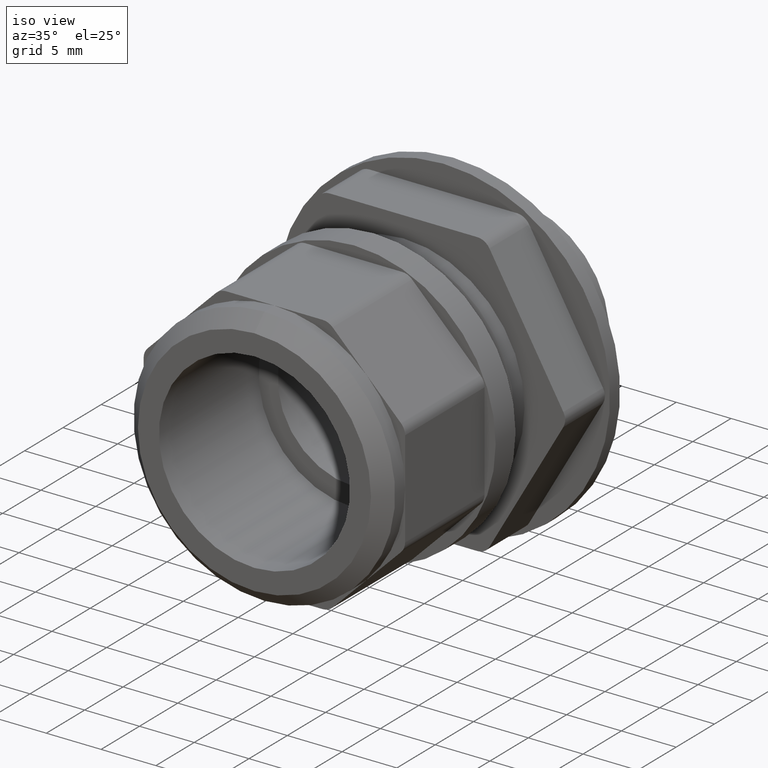
[diagram: clean part render]
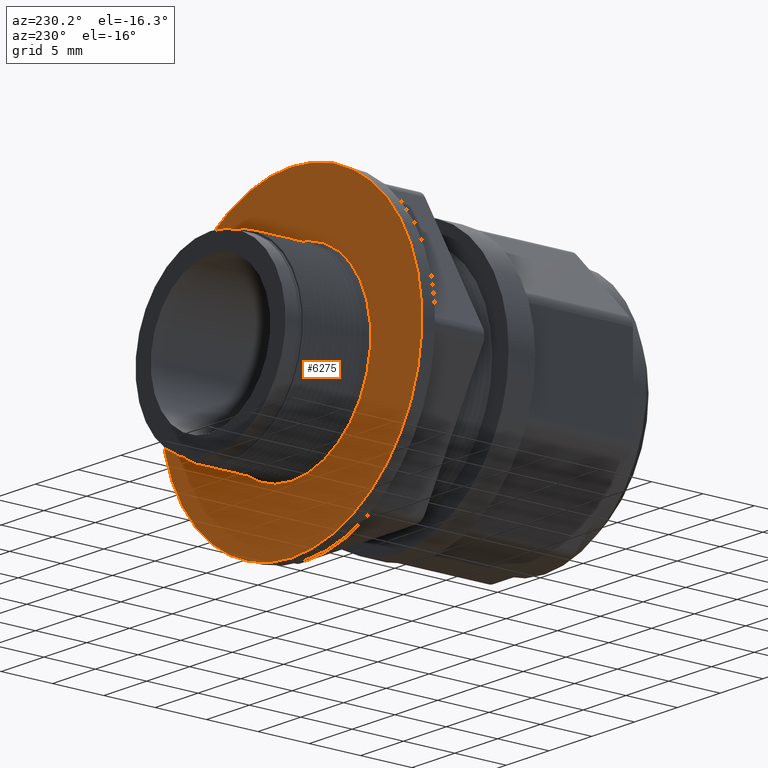
[diagram: tour spotlight — one face highlighted and labeled with its STEP entity id]
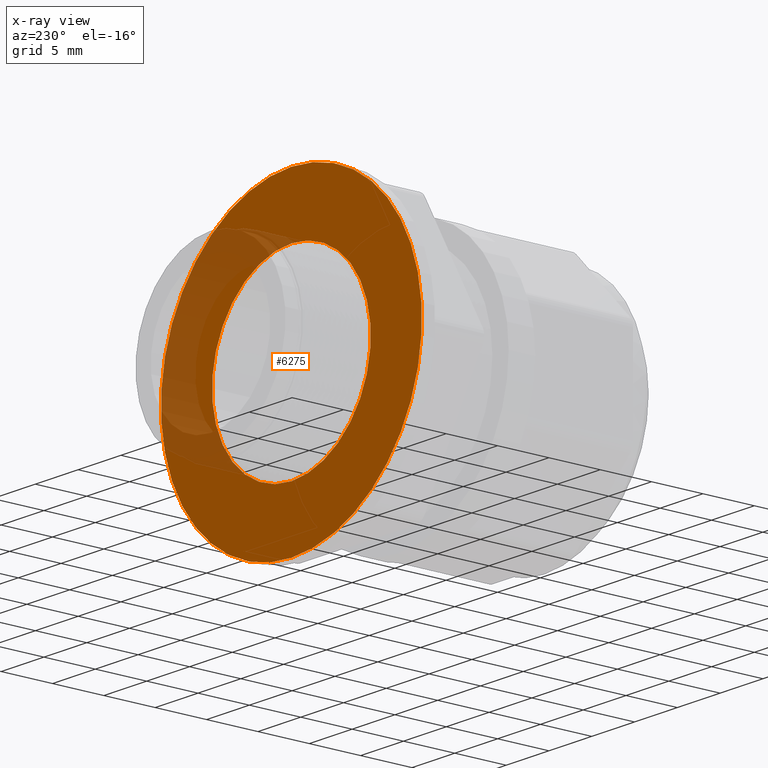
[diagram: x-ray of the same camera — body ghosted, this tour face saturated]
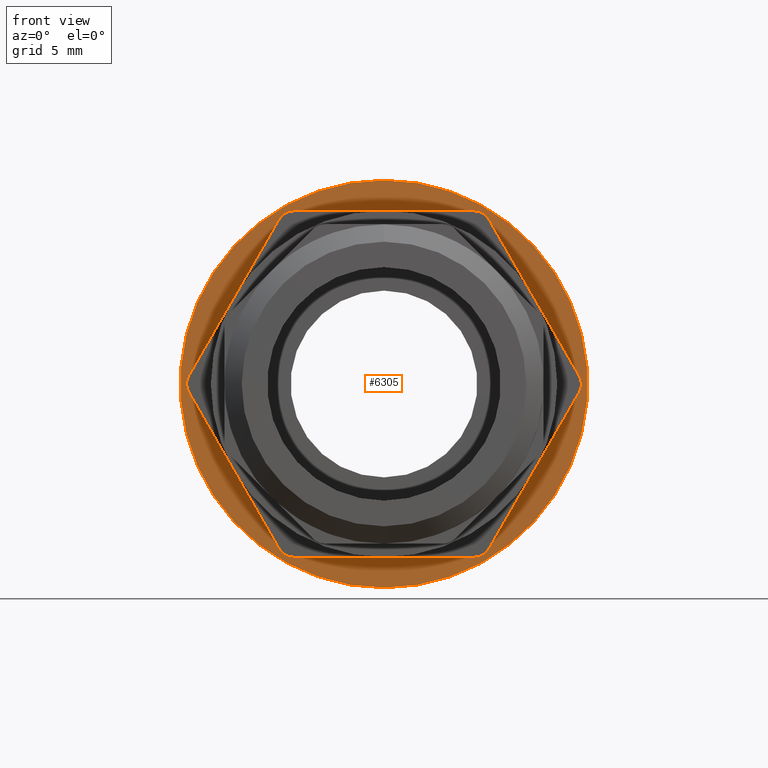
[diagram: tour spotlight — one face highlighted and labeled with its STEP entity id]
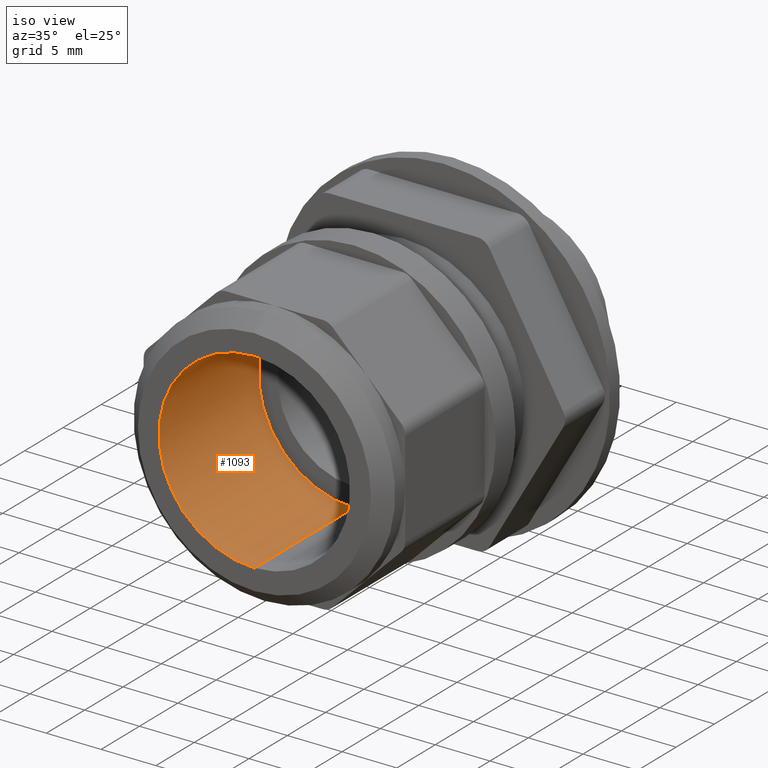
[diagram: tour spotlight — one face highlighted and labeled with its STEP entity id]
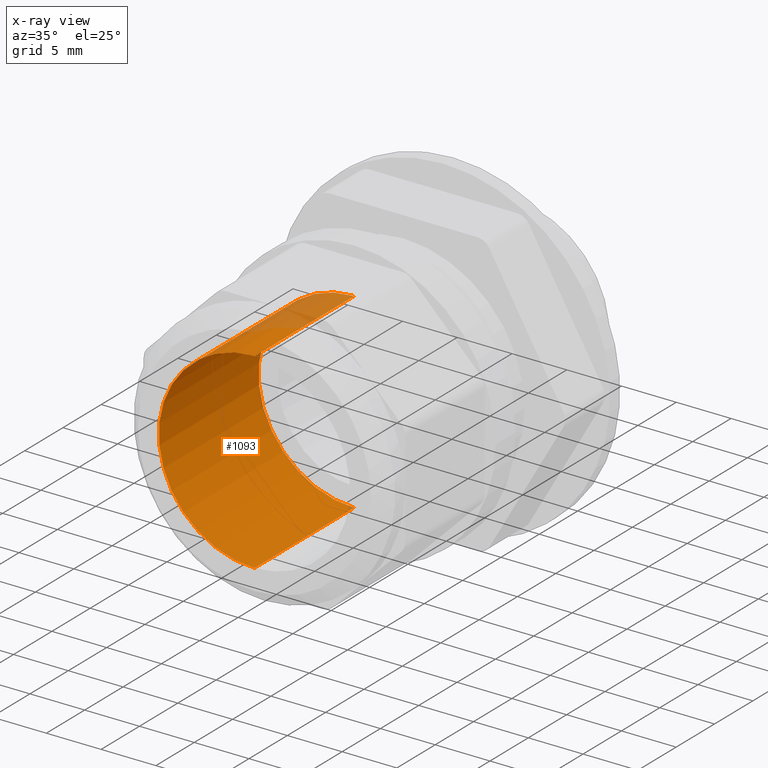
[diagram: x-ray of the same camera — body ghosted, this tour face saturated]
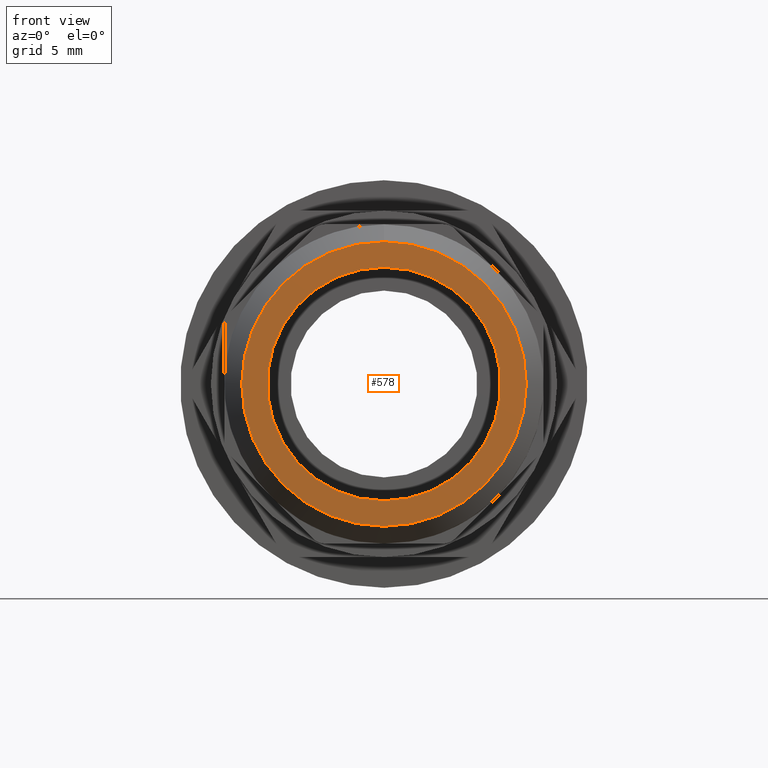
[diagram: tour spotlight — one face highlighted and labeled with its STEP entity id]
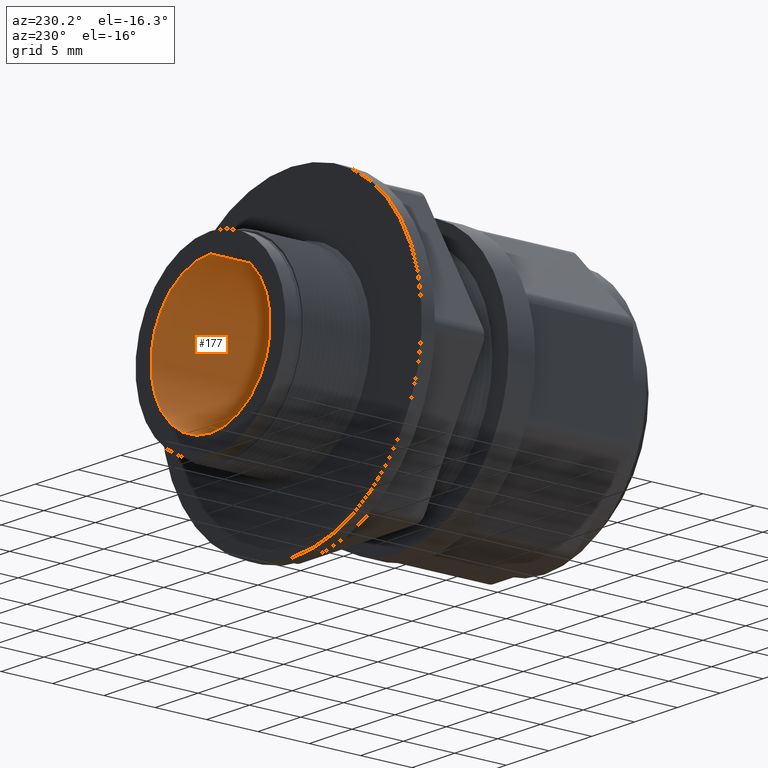
[diagram: tour spotlight — one face highlighted and labeled with its STEP entity id]
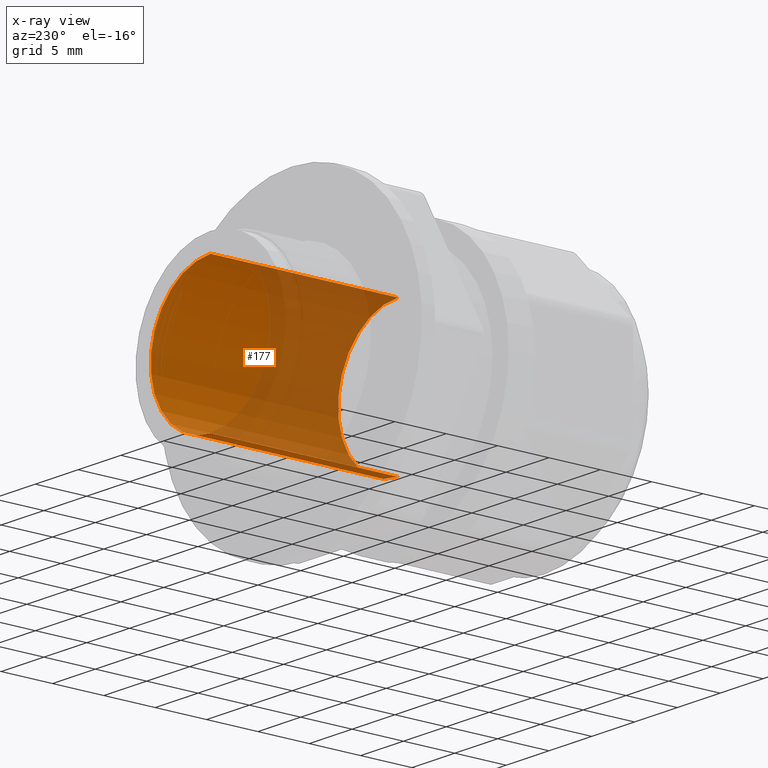
[diagram: x-ray of the same camera — body ghosted, this tour face saturated]
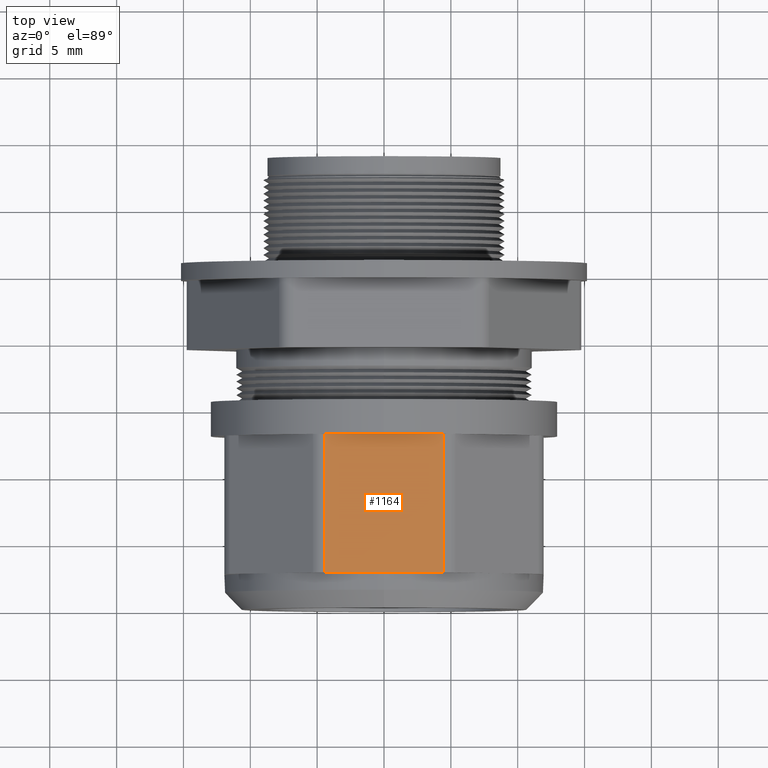
[diagram: tour spotlight — one face highlighted and labeled with its STEP entity id]
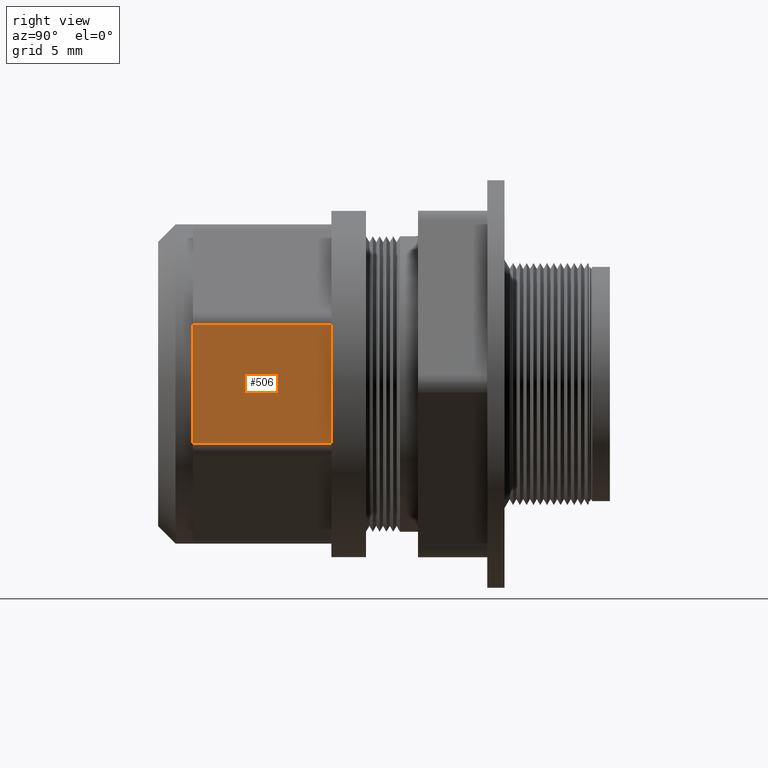
[diagram: tour spotlight — one face highlighted and labeled with its STEP entity id]
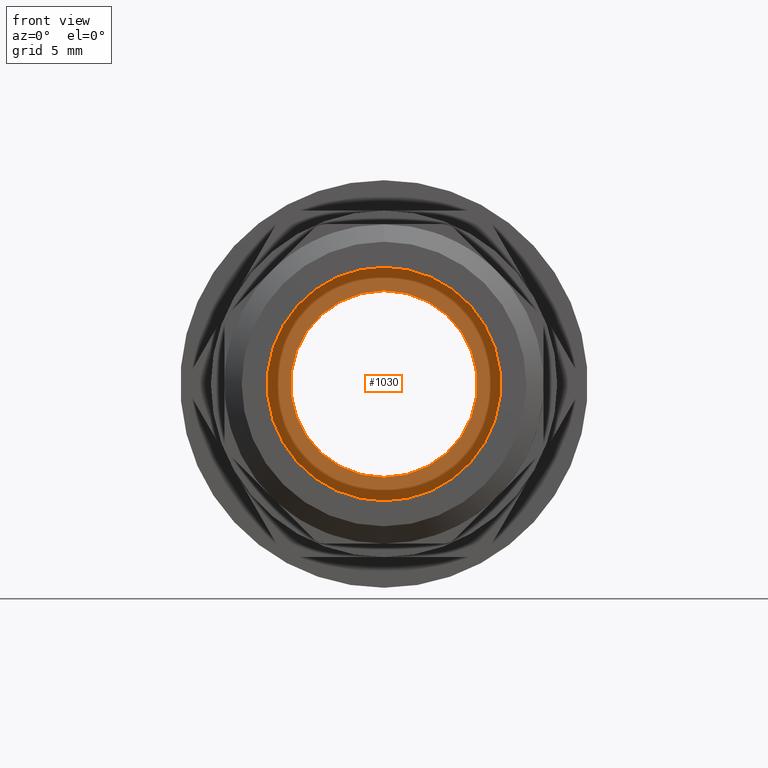
[diagram: tour spotlight — one face highlighted and labeled with its STEP entity id]
A machine part: a face-by-face anatomy tour. The part has 140 B-rep faces; the first image is the clean iso view, then the 8 largest visible faces are spotlighted one at a time (largest first), each with its STEP entity span.

Face 1 — auxiliary view, entity #6275. An x-ray twin of the same camera follows (body ghosted, this face saturated) — the face is partly hidden behind the body. In plain terms, the highlighted planar face has unit normal (0, 1, 0).
Definition (entity closure, byte-faithful):
#139 = VERTEX_POINT ( 'NONE', #1717 ) ;
#140 = EDGE_CURVE ( 'NONE', #139, #142, #1716, .T. ) ;
#142 = VERTEX_POINT ( 'NONE', #1711 ) ;
#336 = EDGE_CURVE ( 'NONE', #142, #139, #2370, .T. ) ;
#357 = VERTEX_POINT ( 'NONE', #2421 ) ;
#360 = EDGE_CURVE ( 'NONE', #363, #357, #2416, .T. ) ;
#363 = VERTEX_POINT ( 'NONE', #2466 ) ;
#635 = EDGE_LOOP ( 'NONE', ( #6312, #6314 ) ) ;
#1711 = CARTESIAN_POINT ( 'NONE',  ( 7.347880794884116500E-017, 1.020000000000000000, -0.5999999999999998700 ) ) ;
#1712 = DIRECTION ( 'NONE',  ( 0.0000000000000000000, 0.0000000000000000000, 1.000000000000000000 ) ) ;
#1713 = DIRECTION ( 'NONE',  ( 0.0000000000000000000, 1.000000000000000000, 0.0000000000000000000 ) ) ;
#1714 = CARTESIAN_POINT ( 'NONE',  ( 0.0000000000000000000, 1.020000000000000000, 0.0000000000000000000 ) ) ;
#1715 = AXIS2_PLACEMENT_3D ( 'NONE', #1714, #1713, #1712 ) ;
#1716 = CIRCLE ( 'NONE', #1715, 0.5999999999999998700 ) ;
#1717 = CARTESIAN_POINT ( 'NONE',  ( 0.0000000000000000000, 1.020000000000000000, 0.5999999999999998700 ) ) ;
#2367 = DIRECTION ( 'NONE',  ( 0.0000000000000000000, 0.0000000000000000000, 1.000000000000000000 ) ) ;
#2368 = DIRECTION ( 'NONE',  ( 0.0000000000000000000, 1.000000000000000000, 0.0000000000000000000 ) ) ;
#2369 = AXIS2_PLACEMENT_3D ( 'NONE', #2375, #2368, #2367 ) ;
#2370 = CIRCLE ( 'NONE', #2369, 0.5999999999999998700 ) ;
#2375 = CARTESIAN_POINT ( 'NONE',  ( 0.0000000000000000000, 1.020000000000000000, 0.0000000000000000000 ) ) ;
#2412 = DIRECTION ( 'NONE',  ( 0.0000000000000000000, 0.0000000000000000000, 1.000000000000000000 ) ) ;
#2413 = DIRECTION ( 'NONE',  ( 0.0000000000000000000, 1.000000000000000000, 0.0000000000000000000 ) ) ;
#2414 = CARTESIAN_POINT ( 'NONE',  ( 0.0000000000000000000, 1.020000000000000000, 0.0000000000000000000 ) ) ;
#2415 = AXIS2_PLACEMENT_3D ( 'NONE', #2414, #2413, #2412 ) ;
#2416 = CIRCLE ( 'NONE', #2415, 0.3649999999999999400 ) ;
#2421 = CARTESIAN_POINT ( 'NONE',  ( 0.0000000000000000000, 1.020000000000000000, -0.3649999999999999400 ) ) ;
#2466 = CARTESIAN_POINT ( 'NONE',  ( 4.469960816887838600E-017, 1.020000000000000000, 0.3649999999999999400 ) ) ;
#5910 = FACE_BOUND ( 'NONE', #6309, .T. ) ;
#5911 = FACE_OUTER_BOUND ( 'NONE', #635, .T. ) ;
#5943 = DIRECTION ( 'NONE',  ( 0.0000000000000000000, 0.0000000000000000000, 1.000000000000000000 ) ) ;
#5944 = DIRECTION ( 'NONE',  ( 0.0000000000000000000, 1.000000000000000000, 0.0000000000000000000 ) ) ;
#5945 = CARTESIAN_POINT ( 'NONE',  ( -0.3649999999999999400, 1.020000000000000000, 0.0000000000000000000 ) ) ;
#5946 = AXIS2_PLACEMENT_3D ( 'NONE', #5945, #5944, #5943 ) ;
#5947 = PLANE ( 'NONE',  #5946 ) ;
#6079 = DIRECTION ( 'NONE',  ( 0.0000000000000000000, 0.0000000000000000000, 1.000000000000000000 ) ) ;
#6080 = DIRECTION ( 'NONE',  ( 0.0000000000000000000, 1.000000000000000000, 0.0000000000000000000 ) ) ;
#6081 = CARTESIAN_POINT ( 'NONE',  ( 0.0000000000000000000, 1.020000000000000000, 0.0000000000000000000 ) ) ;
#6082 = AXIS2_PLACEMENT_3D ( 'NONE', #6081, #6080, #6079 ) ;
#6083 = CIRCLE ( 'NONE', #6082, 0.3649999999999999400 ) ;
#6275 = ADVANCED_FACE ( 'NONE', ( #5911, #5910 ), #5947, .T. ) ;
#6306 = ORIENTED_EDGE ( 'NONE', *, *, #360, .F. ) ;
#6307 = EDGE_CURVE ( 'NONE', #357, #363, #6083, .T. ) ;
#6308 = ORIENTED_EDGE ( 'NONE', *, *, #6307, .F. ) ;
#6309 = EDGE_LOOP ( 'NONE', ( #6308, #6306 ) ) ;
#6312 = ORIENTED_EDGE ( 'NONE', *, *, #140, .T. ) ;
#6314 = ORIENTED_EDGE ( 'NONE', *, *, #336, .T. ) ;

Face 2 — front view, entity #6305. In plain terms, the highlighted planar face has unit normal (0, -1, 0).
Definition (entity closure, byte-faithful):
#3 = EDGE_CURVE ( 'NONE', #4, #6326, #1254, .T. ) ;
#4 = VERTEX_POINT ( 'NONE', #1250 ) ;
#5 = ORIENTED_EDGE ( 'NONE', *, *, #6, .T. ) ;
#6 = EDGE_CURVE ( 'NONE', #4, #6298, #1249, .T. ) ;
#108 = EDGE_CURVE ( 'NONE', #112, #110, #1574, .T. ) ;
#110 = VERTEX_POINT ( 'NONE', #1564 ) ;
#112 = VERTEX_POINT ( 'NONE', #1618 ) ;
#339 = EDGE_CURVE ( 'NONE', #110, #112, #2366, .T. ) ;
#1245 = DIRECTION ( 'NONE',  ( 2.048885995248196900E-015, 0.0000000000000000000, -1.000000000000000000 ) ) ;
#1246 = DIRECTION ( 'NONE',  ( 0.0000000000000000000, 1.000000000000000000, 0.0000000000000000000 ) ) ;
#1247 = CARTESIAN_POINT ( 'NONE',  ( -0.2655811238272279300, 0.9690000000000000800, 0.4600000000000000800 ) ) ;
#1248 = AXIS2_PLACEMENT_3D ( 'NONE', #1247, #1246, #1245 ) ;
#1249 = CIRCLE ( 'NONE', #1248, 0.05000000000000001000 ) ;
#1250 = CARTESIAN_POINT ( 'NONE',  ( -0.3088823940164497900, 0.9690000000000000800, 0.4850000000000001000 ) ) ;
#1251 = DIRECTION ( 'NONE',  ( -0.5000000000000000000, 0.0000000000000000000, -0.8660254037844386000 ) ) ;
#1252 = VECTOR ( 'NONE', #1251, 39.37007874015748900 ) ;
#1253 = CARTESIAN_POINT ( 'NONE',  ( -0.2944486372867091700, 0.9690000000000000800, 0.5100000000000001200 ) ) ;
#1254 = LINE ( 'NONE', #1253, #1252 ) ;
#1564 = CARTESIAN_POINT ( 'NONE',  ( 7.347880794884116500E-017, 0.9690000000000000800, -0.5999999999999998700 ) ) ;
#1570 = DIRECTION ( 'NONE',  ( 0.0000000000000000000, 0.0000000000000000000, -1.000000000000000000 ) ) ;
#1571 = DIRECTION ( 'NONE',  ( 0.0000000000000000000, 1.000000000000000000, 0.0000000000000000000 ) ) ;
#1572 = CARTESIAN_POINT ( 'NONE',  ( 0.0000000000000000000, 0.9690000000000000800, 0.0000000000000000000 ) ) ;
#1573 = AXIS2_PLACEMENT_3D ( 'NONE', #1572, #1571, #1570 ) ;
#1574 = CIRCLE ( 'NONE', #1573, 0.5999999999999998700 ) ;
#1618 = CARTESIAN_POINT ( 'NONE',  ( 0.0000000000000000000, 0.9690000000000000800, 0.5999999999999998700 ) ) ;
#2362 = DIRECTION ( 'NONE',  ( 0.0000000000000000000, 0.0000000000000000000, -1.000000000000000000 ) ) ;
#2363 = DIRECTION ( 'NONE',  ( 0.0000000000000000000, 1.000000000000000000, 0.0000000000000000000 ) ) ;
#2364 = CARTESIAN_POINT ( 'NONE',  ( 0.0000000000000000000, 0.9690000000000000800, 0.0000000000000000000 ) ) ;
#2365 = AXIS2_PLACEMENT_3D ( 'NONE', #2364, #2363, #2362 ) ;
#2366 = CIRCLE ( 'NONE', #2365, 0.5999999999999998700 ) ;
#6010 = CARTESIAN_POINT ( 'NONE',  ( -0.2655811238272279300, 0.9690000000000000800, 0.5100000000000001200 ) ) ;
#6011 = CARTESIAN_POINT ( 'NONE',  ( 0.2655811238272280400, 0.9690000000000000800, 0.5100000000000001200 ) ) ;
#6030 = PLANE ( 'NONE',  #6087 ) ;
#6048 = FACE_BOUND ( 'NONE', #6300, .T. ) ;
#6049 = FACE_OUTER_BOUND ( 'NONE', #6302, .T. ) ;
#6050 = DIRECTION ( 'NONE',  ( -1.000000000000000000, 0.0000000000000000000, 0.0000000000000000000 ) ) ;
#6051 = VECTOR ( 'NONE', #6050, 39.37007874015748100 ) ;
#6052 = CARTESIAN_POINT ( 'NONE',  ( 0.2944486372867093400, 0.9690000000000000800, 0.5100000000000001200 ) ) ;
#6053 = LINE ( 'NONE', #6052, #6051 ) ;
#6055 = CIRCLE ( 'NONE', #6124, 0.05000000000000000300 ) ;
#6056 = CARTESIAN_POINT ( 'NONE',  ( -0.5744635178436776600, 0.9690000000000000800, 0.02500000000000014400 ) ) ;
#6057 = CARTESIAN_POINT ( 'NONE',  ( 0.3088823940164500100, 0.9690000000000000800, 0.4850000000000001000 ) ) ;
#6058 = DIRECTION ( 'NONE',  ( -3.414809992080328300E-015, 0.0000000000000000000, -1.000000000000000000 ) ) ;
#6059 = DIRECTION ( 'NONE',  ( 0.0000000000000000000, 1.000000000000000000, 0.0000000000000000000 ) ) ;
#6060 = CARTESIAN_POINT ( 'NONE',  ( 0.2655811238272280400, 0.9690000000000000800, 0.4600000000000000800 ) ) ;
#6061 = AXIS2_PLACEMENT_3D ( 'NONE', #6060, #6059, #6058 ) ;
#6062 = CIRCLE ( 'NONE', #6061, 0.05000000000000001000 ) ;
#6063 = DIRECTION ( 'NONE',  ( -0.4999999999999998300, 0.0000000000000000000, 0.8660254037844388200 ) ) ;
#6064 = VECTOR ( 'NONE', #6063, 39.37007874015748100 ) ;
#6065 = CARTESIAN_POINT ( 'NONE',  ( 0.5888972745734182300, 0.9690000000000000800, 2.397902313734448100E-016 ) ) ;
#6066 = LINE ( 'NONE', #6065, #6064 ) ;
#6067 = DIRECTION ( 'NONE',  ( -1.365923996832131600E-015, 0.0000000000000000000, -1.000000000000000000 ) ) ;
#6068 = DIRECTION ( 'NONE',  ( 0.0000000000000000000, 1.000000000000000000, 0.0000000000000000000 ) ) ;
#6069 = CARTESIAN_POINT ( 'NONE',  ( 0.5311622476544557400, 0.9690000000000000800, 3.414809992080329000E-016 ) ) ;
#6070 = AXIS2_PLACEMENT_3D ( 'NONE', #6069, #6068, #6067 ) ;
#6071 = CIRCLE ( 'NONE', #6070, 0.05000000000000000300 ) ;
#6072 = CARTESIAN_POINT ( 'NONE',  ( 0.5744635178436775500, 0.9690000000000000800, 0.02500000000000029300 ) ) ;
#6073 = CARTESIAN_POINT ( 'NONE',  ( 0.5744635178436777700, 0.9690000000000000800, -0.02499999999999953000 ) ) ;
#6074 = DIRECTION ( 'NONE',  ( 0.4999999999999998900, 0.0000000000000000000, 0.8660254037844386000 ) ) ;
#6075 = VECTOR ( 'NONE', #6074, 39.37007874015748100 ) ;
#6076 = CARTESIAN_POINT ( 'NONE',  ( 0.2944486372867091100, 0.9690000000000000800, -0.5099999999999997900 ) ) ;
#6077 = LINE ( 'NONE', #6076, #6075 ) ;
#6078 = CARTESIAN_POINT ( 'NONE',  ( 0.3088823940164497900, 0.9690000000000000800, -0.4849999999999997600 ) ) ;
#6084 = DIRECTION ( 'NONE',  ( 0.0000000000000000000, 0.0000000000000000000, -1.000000000000000000 ) ) ;
#6085 = DIRECTION ( 'NONE',  ( 0.0000000000000000000, -1.000000000000000000, 0.0000000000000000000 ) ) ;
#6086 = CARTESIAN_POINT ( 'NONE',  ( 0.0000000000000000000, 0.9690000000000000800, 0.0000000000000000000 ) ) ;
#6087 = AXIS2_PLACEMENT_3D ( 'NONE', #6086, #6085, #6084 ) ;
#6098 = DIRECTION ( 'NONE',  ( 6.829619984160657100E-016, 0.0000000000000000000, -1.000000000000000000 ) ) ;
#6099 = DIRECTION ( 'NONE',  ( 0.0000000000000000000, 1.000000000000000000, 0.0000000000000000000 ) ) ;
#6100 = CARTESIAN_POINT ( 'NONE',  ( 0.2655811238272279300, 0.9690000000000000800, -0.4599999999999998000 ) ) ;
#6101 = AXIS2_PLACEMENT_3D ( 'NONE', #6100, #6099, #6098 ) ;
#6102 = CIRCLE ( 'NONE', #6101, 0.05000000000000001000 ) ;
#6104 = DIRECTION ( 'NONE',  ( 1.000000000000000000, 0.0000000000000000000, 1.159730275387647600E-016 ) ) ;
#6105 = VECTOR ( 'NONE', #6104, 39.37007874015748100 ) ;
#6106 = CARTESIAN_POINT ( 'NONE',  ( -0.2944486372867093900, 0.9690000000000000800, -0.5099999999999999000 ) ) ;
#6107 = LINE ( 'NONE', #6106, #6105 ) ;
#6108 = CARTESIAN_POINT ( 'NONE',  ( 0.2655811238272279300, 0.9690000000000000800, -0.5099999999999997900 ) ) ;
#6109 = CARTESIAN_POINT ( 'NONE',  ( -0.2655811238272280900, 0.9690000000000000800, -0.5099999999999999000 ) ) ;
#6110 = DIRECTION ( 'NONE',  ( 0.0000000000000000000, 0.0000000000000000000, -1.000000000000000000 ) ) ;
#6111 = DIRECTION ( 'NONE',  ( 0.0000000000000000000, 1.000000000000000000, 0.0000000000000000000 ) ) ;
#6112 = CARTESIAN_POINT ( 'NONE',  ( -0.2655811238272280900, 0.9690000000000000800, -0.4599999999999998000 ) ) ;
#6113 = AXIS2_PLACEMENT_3D ( 'NONE', #6112, #6111, #6110 ) ;
#6114 = CIRCLE ( 'NONE', #6113, 0.05000000000000001000 ) ;
#6115 = CARTESIAN_POINT ( 'NONE',  ( -0.3088823940164500700, 0.9690000000000000800, -0.4849999999999997600 ) ) ;
#6116 = DIRECTION ( 'NONE',  ( 0.4999999999999995600, 0.0000000000000000000, -0.8660254037844388200 ) ) ;
#6117 = VECTOR ( 'NONE', #6116, 39.37007874015748900 ) ;
#6118 = CARTESIAN_POINT ( 'NONE',  ( -0.5888972745734182300, 0.9690000000000000800, 2.059168664188453000E-016 ) ) ;
#6119 = LINE ( 'NONE', #6118, #6117 ) ;
#6120 = CARTESIAN_POINT ( 'NONE',  ( -0.5744635178436775500, 0.9690000000000000800, -0.02499999999999984500 ) ) ;
#6121 = DIRECTION ( 'NONE',  ( -1.365923996832131600E-015, 0.0000000000000000000, -1.000000000000000000 ) ) ;
#6122 = DIRECTION ( 'NONE',  ( 0.0000000000000000000, 1.000000000000000000, 0.0000000000000000000 ) ) ;
#6123 = CARTESIAN_POINT ( 'NONE',  ( -0.5311622476544556300, 0.9690000000000000800, 1.365923996832131600E-016 ) ) ;
#6124 = AXIS2_PLACEMENT_3D ( 'NONE', #6123, #6122, #6121 ) ;
#6297 = VERTEX_POINT ( 'NONE', #6011 ) ;
#6298 = VERTEX_POINT ( 'NONE', #6010 ) ;
#6299 = EDGE_CURVE ( 'NONE', #6297, #6298, #6053, .T. ) ;
#6300 = EDGE_LOOP ( 'NONE', ( #6301, #6321, #6324, #6318, #6315, #6310, #6338, #6334, #6330, #6328, #6325, #5 ) ) ;
#6301 = ORIENTED_EDGE ( 'NONE', *, *, #6299, .F. ) ;
#6302 = EDGE_LOOP ( 'NONE', ( #6303, #6304 ) ) ;
#6303 = ORIENTED_EDGE ( 'NONE', *, *, #108, .F. ) ;
#6304 = ORIENTED_EDGE ( 'NONE', *, *, #339, .F. ) ;
#6305 = ADVANCED_FACE ( 'NONE', ( #6049, #6048 ), #6030, .T. ) ;
#6310 = ORIENTED_EDGE ( 'NONE', *, *, #6340, .T. ) ;
#6311 = VERTEX_POINT ( 'NONE', #6078 ) ;
#6313 = EDGE_CURVE ( 'NONE', #6311, #6316, #6077, .T. ) ;
#6315 = ORIENTED_EDGE ( 'NONE', *, *, #6313, .F. ) ;
#6316 = VERTEX_POINT ( 'NONE', #6073 ) ;
#6317 = VERTEX_POINT ( 'NONE', #6072 ) ;
#6318 = ORIENTED_EDGE ( 'NONE', *, *, #6319, .T. ) ;
#6319 = EDGE_CURVE ( 'NONE', #6317, #6316, #6071, .T. ) ;
#6320 = EDGE_CURVE ( 'NONE', #6317, #6323, #6066, .T. ) ;
#6321 = ORIENTED_EDGE ( 'NONE', *, *, #6322, .T. ) ;
#6322 = EDGE_CURVE ( 'NONE', #6297, #6323, #6062, .T. ) ;
#6323 = VERTEX_POINT ( 'NONE', #6057 ) ;
#6324 = ORIENTED_EDGE ( 'NONE', *, *, #6320, .F. ) ;
#6325 = ORIENTED_EDGE ( 'NONE', *, *, #3, .F. ) ;
#6326 = VERTEX_POINT ( 'NONE', #6056 ) ;
#6327 = EDGE_CURVE ( 'NONE', #6329, #6326, #6055, .T. ) ;
#6328 = ORIENTED_EDGE ( 'NONE', *, *, #6327, .T. ) ;
#6329 = VERTEX_POINT ( 'NONE', #6120 ) ;
#6330 = ORIENTED_EDGE ( 'NONE', *, *, #6331, .F. ) ;
#6331 = EDGE_CURVE ( 'NONE', #6329, #6332, #6119, .T. ) ;
#6332 = VERTEX_POINT ( 'NONE', #6115 ) ;
#6334 = ORIENTED_EDGE ( 'NONE', *, *, #6335, .T. ) ;
#6335 = EDGE_CURVE ( 'NONE', #6336, #6332, #6114, .T. ) ;
#6336 = VERTEX_POINT ( 'NONE', #6109 ) ;
#6337 = VERTEX_POINT ( 'NONE', #6108 ) ;
#6338 = ORIENTED_EDGE ( 'NONE', *, *, #6339, .F. ) ;
#6339 = EDGE_CURVE ( 'NONE', #6336, #6337, #6107, .T. ) ;
#6340 = EDGE_CURVE ( 'NONE', #6311, #6337, #6102, .T. ) ;

Face 3 — iso view, entity #1093. An x-ray twin of the same camera follows (body ghosted, this face saturated) — the face is partly hidden behind the body. In plain terms, the highlighted cylindrical surface (partial cylindrical patch) has radius 8.7312 mm, axis along (0, -1, 0).
Definition (entity closure, byte-faithful):
#1086 = VERTEX_POINT ( 'NONE', #5090 ) ;
#1087 = VERTEX_POINT ( 'NONE', #5089 ) ;
#1088 = ORIENTED_EDGE ( 'NONE', *, *, #1089, .T. ) ;
#1089 = EDGE_CURVE ( 'NONE', #1086, #1090, #5088, .T. ) ;
#1090 = VERTEX_POINT ( 'NONE', #5084 ) ;
#1091 = EDGE_LOOP ( 'NONE', ( #1094, #1088, #1096, #1099 ) ) ;
#1093 = ADVANCED_FACE ( 'NONE', ( #5116 ), #5144, .F. ) ;
#1094 = ORIENTED_EDGE ( 'NONE', *, *, #1095, .F. ) ;
#1095 = EDGE_CURVE ( 'NONE', #1086, #1087, #5140, .T. ) ;
#1096 = ORIENTED_EDGE ( 'NONE', *, *, #1097, .T. ) ;
#1097 = EDGE_CURVE ( 'NONE', #1090, #1098, #5136, .T. ) ;
#1098 = VERTEX_POINT ( 'NONE', #5131 ) ;
#1099 = ORIENTED_EDGE ( 'NONE', *, *, #1105, .F. ) ;
#1105 = EDGE_CURVE ( 'NONE', #1087, #1098, #5171, .T. ) ;
#5084 = CARTESIAN_POINT ( 'NONE',  ( 4.209723372069026300E-017, 0.0000000000000000000, 0.3437500000000000000 ) ) ;
#5085 = DIRECTION ( 'NONE',  ( 0.0000000000000000000, -1.000000000000000000, 0.0000000000000000000 ) ) ;
#5086 = VECTOR ( 'NONE', #5085, 39.37007874015748100 ) ;
#5087 = CARTESIAN_POINT ( 'NONE',  ( 4.209723372069026300E-017, 0.5120000000000000100, 0.3437500000000000000 ) ) ;
#5088 = LINE ( 'NONE', #5087, #5086 ) ;
#5089 = CARTESIAN_POINT ( 'NONE',  ( 0.0000000000000000000, 0.5120000000000000100, -0.3437500000000000000 ) ) ;
#5090 = CARTESIAN_POINT ( 'NONE',  ( 4.209723372069026300E-017, 0.5120000000000000100, 0.3437500000000000000 ) ) ;
#5116 = FACE_OUTER_BOUND ( 'NONE', #1091, .T. ) ;
#5131 = CARTESIAN_POINT ( 'NONE',  ( 0.0000000000000000000, 0.0000000000000000000, -0.3437500000000000000 ) ) ;
#5132 = DIRECTION ( 'NONE',  ( 0.0000000000000000000, 0.0000000000000000000, -1.000000000000000000 ) ) ;
#5133 = DIRECTION ( 'NONE',  ( 0.0000000000000000000, -1.000000000000000000, 0.0000000000000000000 ) ) ;
#5134 = CARTESIAN_POINT ( 'NONE',  ( 0.0000000000000000000, 0.0000000000000000000, 0.0000000000000000000 ) ) ;
#5135 = AXIS2_PLACEMENT_3D ( 'NONE', #5134, #5133, #5132 ) ;
#5136 = CIRCLE ( 'NONE', #5135, 0.3437500000000000000 ) ;
#5137 = DIRECTION ( 'NONE',  ( 0.0000000000000000000, 0.0000000000000000000, -1.000000000000000000 ) ) ;
#5138 = DIRECTION ( 'NONE',  ( 0.0000000000000000000, -1.000000000000000000, 0.0000000000000000000 ) ) ;
#5139 = AXIS2_PLACEMENT_3D ( 'NONE', #5145, #5138, #5137 ) ;
#5140 = CIRCLE ( 'NONE', #5139, 0.3437500000000000000 ) ;
#5141 = DIRECTION ( 'NONE',  ( 0.0000000000000000000, 0.0000000000000000000, -1.000000000000000000 ) ) ;
#5142 = DIRECTION ( 'NONE',  ( 0.0000000000000000000, -1.000000000000000000, 0.0000000000000000000 ) ) ;
#5143 = AXIS2_PLACEMENT_3D ( 'NONE', #5146, #5142, #5141 ) ;
#5144 = CYLINDRICAL_SURFACE ( 'NONE', #5143, 0.3437500000000000000 ) ;
#5145 = CARTESIAN_POINT ( 'NONE',  ( 0.0000000000000000000, 0.5120000000000000100, 0.0000000000000000000 ) ) ;
#5146 = CARTESIAN_POINT ( 'NONE',  ( 0.0000000000000000000, 0.5120000000000000100, 0.0000000000000000000 ) ) ;
#5168 = DIRECTION ( 'NONE',  ( 0.0000000000000000000, -1.000000000000000000, 0.0000000000000000000 ) ) ;
#5169 = VECTOR ( 'NONE', #5168, 39.37007874015748100 ) ;
#5170 = CARTESIAN_POINT ( 'NONE',  ( 0.0000000000000000000, 0.5120000000000000100, -0.3437500000000000000 ) ) ;
#5171 = LINE ( 'NONE', #5170, #5169 ) ;

Face 4 — front view, entity #578. In plain terms, the highlighted planar face has unit normal (0, -1, 0).
Definition (entity closure, byte-faithful):
#570 = EDGE_LOOP ( 'NONE', ( #579, #574 ) ) ;
#571 = ORIENTED_EDGE ( 'NONE', *, *, #1150, .F. ) ;
#573 = EDGE_CURVE ( 'NONE', #1098, #1090, #3188, .T. ) ;
#574 = ORIENTED_EDGE ( 'NONE', *, *, #1097, .F. ) ;
#578 = ADVANCED_FACE ( 'NONE', ( #3178, #3177 ), #3217, .T. ) ;
#579 = ORIENTED_EDGE ( 'NONE', *, *, #573, .F. ) ;
#580 = EDGE_LOOP ( 'NONE', ( #571, #581 ) ) ;
#581 = ORIENTED_EDGE ( 'NONE', *, *, #641, .F. ) ;
#641 = EDGE_CURVE ( 'NONE', #1081, #1078, #3405, .T. ) ;
#1078 = VERTEX_POINT ( 'NONE', #5057 ) ;
#1081 = VERTEX_POINT ( 'NONE', #5050 ) ;
#1090 = VERTEX_POINT ( 'NONE', #5084 ) ;
#1097 = EDGE_CURVE ( 'NONE', #1090, #1098, #5136, .T. ) ;
#1098 = VERTEX_POINT ( 'NONE', #5131 ) ;
#1150 = EDGE_CURVE ( 'NONE', #1078, #1081, #5320, .T. ) ;
#3177 = FACE_OUTER_BOUND ( 'NONE', #580, .T. ) ;
#3178 = FACE_BOUND ( 'NONE', #570, .T. ) ;
#3185 = DIRECTION ( 'NONE',  ( 0.0000000000000000000, 0.0000000000000000000, -1.000000000000000000 ) ) ;
#3186 = DIRECTION ( 'NONE',  ( 0.0000000000000000000, -1.000000000000000000, 0.0000000000000000000 ) ) ;
#3187 = AXIS2_PLACEMENT_3D ( 'NONE', #3193, #3186, #3185 ) ;
#3188 = CIRCLE ( 'NONE', #3187, 0.3437500000000000000 ) ;
#3193 = CARTESIAN_POINT ( 'NONE',  ( 0.0000000000000000000, 0.0000000000000000000, 0.0000000000000000000 ) ) ;
#3212 = DIRECTION ( 'NONE',  ( 0.0000000000000000000, 0.0000000000000000000, -1.000000000000000000 ) ) ;
#3213 = DIRECTION ( 'NONE',  ( 0.0000000000000000000, -1.000000000000000000, 0.0000000000000000000 ) ) ;
#3214 = CARTESIAN_POINT ( 'NONE',  ( -0.2749999999999997400, -8.537024980200822600E-018, 0.0000000000000000000 ) ) ;
#3215 = AXIS2_PLACEMENT_3D ( 'NONE', #3214, #3213, #3212 ) ;
#3217 = PLANE ( 'NONE',  #3215 ) ;
#3402 = DIRECTION ( 'NONE',  ( 0.0000000000000000000, 0.0000000000000000000, 1.000000000000000000 ) ) ;
#3403 = DIRECTION ( 'NONE',  ( 0.0000000000000000000, 1.000000000000000000, 0.0000000000000000000 ) ) ;
#3404 = AXIS2_PLACEMENT_3D ( 'NONE', #3411, #3403, #3402 ) ;
#3405 = CIRCLE ( 'NONE', #3404, 0.4189999999999995400 ) ;
#3411 = CARTESIAN_POINT ( 'NONE',  ( 0.0000000000000000000, 0.0000000000000000000, 0.0000000000000000000 ) ) ;
#5050 = CARTESIAN_POINT ( 'NONE',  ( 5.443555022209981000E-017, 0.0000000000000000000, -0.4189999999999995400 ) ) ;
#5057 = CARTESIAN_POINT ( 'NONE',  ( 0.0000000000000000000, 0.0000000000000000000, 0.4189999999999995400 ) ) ;
#5084 = CARTESIAN_POINT ( 'NONE',  ( 4.209723372069026300E-017, 0.0000000000000000000, 0.3437500000000000000 ) ) ;
#5131 = CARTESIAN_POINT ( 'NONE',  ( 0.0000000000000000000, 0.0000000000000000000, -0.3437500000000000000 ) ) ;
#5132 = DIRECTION ( 'NONE',  ( 0.0000000000000000000, 0.0000000000000000000, -1.000000000000000000 ) ) ;
#5133 = DIRECTION ( 'NONE',  ( 0.0000000000000000000, -1.000000000000000000, 0.0000000000000000000 ) ) ;
#5134 = CARTESIAN_POINT ( 'NONE',  ( 0.0000000000000000000, 0.0000000000000000000, 0.0000000000000000000 ) ) ;
#5135 = AXIS2_PLACEMENT_3D ( 'NONE', #5134, #5133, #5132 ) ;
#5136 = CIRCLE ( 'NONE', #5135, 0.3437500000000000000 ) ;
#5316 = DIRECTION ( 'NONE',  ( 0.0000000000000000000, 0.0000000000000000000, 1.000000000000000000 ) ) ;
#5317 = DIRECTION ( 'NONE',  ( 0.0000000000000000000, 1.000000000000000000, 0.0000000000000000000 ) ) ;
#5318 = CARTESIAN_POINT ( 'NONE',  ( 0.0000000000000000000, 0.0000000000000000000, 0.0000000000000000000 ) ) ;
#5319 = AXIS2_PLACEMENT_3D ( 'NONE', #5318, #5317, #5316 ) ;
#5320 = CIRCLE ( 'NONE', #5319, 0.4189999999999995400 ) ;

Face 5 — auxiliary view, entity #177. An x-ray twin of the same camera follows (body ghosted, this face saturated) — the face is partly hidden behind the body. In plain terms, the highlighted cylindrical surface (partial cylindrical patch) has radius 6.985 mm, axis along (0, 1, 0).
Definition (entity closure, byte-faithful):
#86 = EDGE_CURVE ( 'NONE', #97, #87, #1515, .T. ) ;
#87 = VERTEX_POINT ( 'NONE', #1562 ) ;
#90 = VERTEX_POINT ( 'NONE', #1561 ) ;
#91 = EDGE_CURVE ( 'NONE', #100, #90, #1560, .T. ) ;
#97 = VERTEX_POINT ( 'NONE', #1581 ) ;
#100 = VERTEX_POINT ( 'NONE', #1580 ) ;
#170 = ORIENTED_EDGE ( 'NONE', *, *, #6277, .T. ) ;
#172 = ORIENTED_EDGE ( 'NONE', *, *, #91, .F. ) ;
#173 = ORIENTED_EDGE ( 'NONE', *, *, #174, .F. ) ;
#174 = EDGE_CURVE ( 'NONE', #97, #100, #1808, .T. ) ;
#175 = EDGE_LOOP ( 'NONE', ( #172, #173, #176, #170 ) ) ;
#176 = ORIENTED_EDGE ( 'NONE', *, *, #86, .T. ) ;
#177 = ADVANCED_FACE ( 'NONE', ( #1803 ), #1833, .F. ) ;
#1508 = DIRECTION ( 'NONE',  ( 0.0000000000000000000, 1.000000000000000000, 0.0000000000000000000 ) ) ;
#1509 = VECTOR ( 'NONE', #1508, 39.37007874015748100 ) ;
#1510 = CARTESIAN_POINT ( 'NONE',  ( 0.0000000000000000000, 1.843561561718224600, 0.2749999999999999100 ) ) ;
#1515 = LINE ( 'NONE', #1510, #1509 ) ;
#1557 = DIRECTION ( 'NONE',  ( 0.0000000000000000000, 1.000000000000000000, 0.0000000000000000000 ) ) ;
#1558 = VECTOR ( 'NONE', #1557, 39.37007874015748100 ) ;
#1559 = CARTESIAN_POINT ( 'NONE',  ( 3.367778697655220600E-017, 1.843561561718224600, -0.2749999999999999100 ) ) ;
#1560 = LINE ( 'NONE', #1559, #1558 ) ;
#1561 = CARTESIAN_POINT ( 'NONE',  ( 3.367778697655221300E-017, 1.330000000000000100, -0.2750000000000000200 ) ) ;
#1562 = CARTESIAN_POINT ( 'NONE',  ( 0.0000000000000000000, 1.330000000000000100, 0.2749999999999999700 ) ) ;
#1580 = CARTESIAN_POINT ( 'NONE',  ( 3.367778697655220000E-017, 0.6119999999999998800, -0.2749999999999999100 ) ) ;
#1581 = CARTESIAN_POINT ( 'NONE',  ( 0.0000000000000000000, 0.6119999999999998800, 0.2749999999999999100 ) ) ;
#1803 = FACE_OUTER_BOUND ( 'NONE', #175, .T. ) ;
#1804 = DIRECTION ( 'NONE',  ( 0.0000000000000000000, 0.0000000000000000000, 1.000000000000000000 ) ) ;
#1805 = DIRECTION ( 'NONE',  ( 0.0000000000000000000, 1.000000000000000000, 0.0000000000000000000 ) ) ;
#1806 = CARTESIAN_POINT ( 'NONE',  ( 0.0000000000000000000, 0.6119999999999998800, 0.0000000000000000000 ) ) ;
#1807 = AXIS2_PLACEMENT_3D ( 'NONE', #1806, #1805, #1804 ) ;
#1808 = CIRCLE ( 'NONE', #1807, 0.2749999999999999100 ) ;
#1830 = DIRECTION ( 'NONE',  ( 0.0000000000000000000, 0.0000000000000000000, 1.000000000000000000 ) ) ;
#1831 = DIRECTION ( 'NONE',  ( 0.0000000000000000000, 1.000000000000000000, 0.0000000000000000000 ) ) ;
#1832 = AXIS2_PLACEMENT_3D ( 'NONE', #1835, #1831, #1830 ) ;
#1833 = CYLINDRICAL_SURFACE ( 'NONE', #1832, 0.2749999999999999100 ) ;
#1835 = CARTESIAN_POINT ( 'NONE',  ( 0.0000000000000000000, 1.843561561718224600, 0.0000000000000000000 ) ) ;
#5932 = DIRECTION ( 'NONE',  ( 0.0000000000000000000, 0.0000000000000000000, 1.000000000000000000 ) ) ;
#5933 = DIRECTION ( 'NONE',  ( 0.0000000000000000000, 1.000000000000000000, 0.0000000000000000000 ) ) ;
#5934 = CARTESIAN_POINT ( 'NONE',  ( 0.0000000000000000000, 1.330000000000000100, 0.0000000000000000000 ) ) ;
#5935 = AXIS2_PLACEMENT_3D ( 'NONE', #5934, #5933, #5932 ) ;
#5936 = CIRCLE ( 'NONE', #5935, 0.2749999999999999700 ) ;
#6277 = EDGE_CURVE ( 'NONE', #87, #90, #5936, .T. ) ;

Face 6 — top view, entity #1164. In plain terms, the highlighted planar face has unit normal (-0, 0, 1).
Definition (entity closure, byte-faithful):
#511 = VERTEX_POINT ( 'NONE', #2952 ) ;
#512 = EDGE_CURVE ( 'NONE', #511, #520, #2951, .T. ) ;
#520 = VERTEX_POINT ( 'NONE', #2994 ) ;
#558 = ORIENTED_EDGE ( 'NONE', *, *, #1044, .F. ) ;
#559 = ORIENTED_EDGE ( 'NONE', *, *, #1048, .F. ) ;
#560 = ORIENTED_EDGE ( 'NONE', *, *, #561, .T. ) ;
#561 = EDGE_CURVE ( 'NONE', #1005, #511, #3161, .T. ) ;
#564 = ORIENTED_EDGE ( 'NONE', *, *, #606, .T. ) ;
#606 = EDGE_CURVE ( 'NONE', #520, #1052, #3326, .T. ) ;
#1005 = VERTEX_POINT ( 'NONE', #4826 ) ;
#1044 = EDGE_CURVE ( 'NONE', #1141, #1052, #4979, .T. ) ;
#1048 = EDGE_CURVE ( 'NONE', #1005, #1141, #4969, .T. ) ;
#1052 = VERTEX_POINT ( 'NONE', #5001 ) ;
#1141 = VERTEX_POINT ( 'NONE', #5274 ) ;
#1164 = ADVANCED_FACE ( 'NONE', ( #5331 ), #5372, .T. ) ;
#1165 = EDGE_LOOP ( 'NONE', ( #1220, #564, #558, #559, #560 ) ) ;
#1220 = ORIENTED_EDGE ( 'NONE', *, *, #512, .T. ) ;
#2948 = DIRECTION ( 'NONE',  ( -1.000000000000000000, 0.0000000000000000000, -1.754059701235636800E-016 ) ) ;
#2949 = VECTOR ( 'NONE', #2948, 39.37007874015748100 ) ;
#2950 = CARTESIAN_POINT ( 'NONE',  ( 0.1946803743153544800, 0.5100000000000000100, 0.4699999999999999200 ) ) ;
#2951 = LINE ( 'NONE', #2950, #2949 ) ;
#2952 = CARTESIAN_POINT ( 'NONE',  ( 0.1739696961966997700, 0.5100000000000000100, 0.4699999999999999200 ) ) ;
#2994 = CARTESIAN_POINT ( 'NONE',  ( -0.1739696961966999700, 0.5100000000000000100, 0.4699999999999998600 ) ) ;
#3153 = DIRECTION ( 'NONE',  ( 0.0000000000000000000, 1.000000000000000000, 0.0000000000000000000 ) ) ;
#3154 = VECTOR ( 'NONE', #3153, 39.37007874015748100 ) ;
#3155 = CARTESIAN_POINT ( 'NONE',  ( 0.1739696961966997700, 0.5100000000000000100, 0.4699999999999999200 ) ) ;
#3161 = LINE ( 'NONE', #3155, #3154 ) ;
#3319 = DIRECTION ( 'NONE',  ( 0.0000000000000000000, -1.000000000000000000, 0.0000000000000000000 ) ) ;
#3320 = VECTOR ( 'NONE', #3319, 39.37007874015748100 ) ;
#3321 = CARTESIAN_POINT ( 'NONE',  ( -0.1739696961966999700, 0.5100000000000000100, 0.4699999999999998600 ) ) ;
#3326 = LINE ( 'NONE', #3321, #3320 ) ;
#4826 = CARTESIAN_POINT ( 'NONE',  ( 0.1739696961966998000, 0.1020000000000000200, 0.4699999999999999200 ) ) ;
#4966 = DIRECTION ( 'NONE',  ( -1.000000000000000000, 0.0000000000000000000, -1.754059701235637100E-016 ) ) ;
#4967 = VECTOR ( 'NONE', #4966, 39.37007874015748100 ) ;
#4968 = CARTESIAN_POINT ( 'NONE',  ( -0.4699999999999998600, 0.1020000000000000200, 0.4699999999999997500 ) ) ;
#4969 = LINE ( 'NONE', #4968, #4967 ) ;
#4976 = DIRECTION ( 'NONE',  ( -1.000000000000000000, 0.0000000000000000000, -1.754059701235637100E-016 ) ) ;
#4977 = VECTOR ( 'NONE', #4976, 39.37007874015748100 ) ;
#4978 = CARTESIAN_POINT ( 'NONE',  ( -0.4699999999999998600, 0.1020000000000000200, 0.4699999999999997500 ) ) ;
#4979 = LINE ( 'NONE', #4978, #4977 ) ;
#5001 = CARTESIAN_POINT ( 'NONE',  ( -0.1739696961966999700, 0.1020000000000000200, 0.4699999999999998600 ) ) ;
#5274 = CARTESIAN_POINT ( 'NONE',  ( -8.244080595807491500E-017, 0.1020000000000001700, 0.4699999999999998600 ) ) ;
#5331 = FACE_OUTER_BOUND ( 'NONE', #1165, .T. ) ;
#5367 = DIRECTION ( 'NONE',  ( 1.000000000000000000, 0.0000000000000000000, 1.754059701235637100E-016 ) ) ;
#5368 = DIRECTION ( 'NONE',  ( -1.754059701235637100E-016, 0.0000000000000000000, 1.000000000000000000 ) ) ;
#5369 = CARTESIAN_POINT ( 'NONE',  ( 0.1946803743153544800, 0.5100000000000000100, 0.4699999999999999200 ) ) ;
#5370 = AXIS2_PLACEMENT_3D ( 'NONE', #5369, #5368, #5367 ) ;
#5372 = PLANE ( 'NONE',  #5370 ) ;

Face 7 — right view, entity #506. In plain terms, the highlighted planar face has unit normal (1, 0, 0).
Definition (entity closure, byte-faithful):
#497 = ORIENTED_EDGE ( 'NONE', *, *, #1000, .F. ) ;
#498 = EDGE_CURVE ( 'NONE', #955, #1075, #2904, .T. ) ;
#499 = EDGE_LOOP ( 'NONE', ( #507, #516, #521, #522, #497 ) ) ;
#506 = ADVANCED_FACE ( 'NONE', ( #2946 ), #2927, .T. ) ;
#507 = ORIENTED_EDGE ( 'NONE', *, *, #1028, .F. ) ;
#516 = ORIENTED_EDGE ( 'NONE', *, *, #517, .T. ) ;
#517 = EDGE_CURVE ( 'NONE', #1018, #965, #3003, .T. ) ;
#521 = ORIENTED_EDGE ( 'NONE', *, *, #1034, .T. ) ;
#522 = ORIENTED_EDGE ( 'NONE', *, *, #498, .T. ) ;
#955 = VERTEX_POINT ( 'NONE', #4696 ) ;
#965 = VERTEX_POINT ( 'NONE', #4720 ) ;
#1000 = EDGE_CURVE ( 'NONE', #1113, #1075, #4839, .T. ) ;
#1018 = VERTEX_POINT ( 'NONE', #4882 ) ;
#1028 = EDGE_CURVE ( 'NONE', #1018, #1113, #4918, .T. ) ;
#1034 = EDGE_CURVE ( 'NONE', #965, #955, #4940, .T. ) ;
#1075 = VERTEX_POINT ( 'NONE', #5059 ) ;
#1113 = VERTEX_POINT ( 'NONE', #5195 ) ;
#2901 = DIRECTION ( 'NONE',  ( 0.0000000000000000000, -1.000000000000000000, 0.0000000000000000000 ) ) ;
#2902 = VECTOR ( 'NONE', #2901, 39.37007874015748100 ) ;
#2903 = CARTESIAN_POINT ( 'NONE',  ( 0.4699999999999999200, 0.5100000000000000100, 0.1739696961966999100 ) ) ;
#2904 = LINE ( 'NONE', #2903, #2902 ) ;
#2922 = DIRECTION ( 'NONE',  ( 0.0000000000000000000, 0.0000000000000000000, -1.000000000000000000 ) ) ;
#2923 = DIRECTION ( 'NONE',  ( 1.000000000000000000, 0.0000000000000000000, 0.0000000000000000000 ) ) ;
#2924 = CARTESIAN_POINT ( 'NONE',  ( 0.4699999999999999200, 0.5100000000000000100, -0.1946803743153546800 ) ) ;
#2925 = AXIS2_PLACEMENT_3D ( 'NONE', #2924, #2923, #2922 ) ;
#2927 = PLANE ( 'NONE',  #2925 ) ;
#2946 = FACE_OUTER_BOUND ( 'NONE', #499, .T. ) ;
#3000 = DIRECTION ( 'NONE',  ( 0.0000000000000000000, 1.000000000000000000, 0.0000000000000000000 ) ) ;
#3001 = VECTOR ( 'NONE', #3000, 39.37007874015748100 ) ;
#3002 = CARTESIAN_POINT ( 'NONE',  ( 0.4699999999999999200, 0.5100000000000000100, -0.1739696961966999400 ) ) ;
#3003 = LINE ( 'NONE', #3002, #3001 ) ;
#4696 = CARTESIAN_POINT ( 'NONE',  ( 0.4699999999999999200, 0.5100000000000000100, 0.1739696961966999100 ) ) ;
#4720 = CARTESIAN_POINT ( 'NONE',  ( 0.4699999999999999200, 0.5100000000000000100, -0.1739696961966999400 ) ) ;
#4836 = DIRECTION ( 'NONE',  ( 0.0000000000000000000, 0.0000000000000000000, 1.000000000000000000 ) ) ;
#4837 = VECTOR ( 'NONE', #4836, 39.37007874015748100 ) ;
#4838 = CARTESIAN_POINT ( 'NONE',  ( 0.4699999999999999200, 0.1020000000000000200, 0.0000000000000000000 ) ) ;
#4839 = LINE ( 'NONE', #4838, #4837 ) ;
#4882 = CARTESIAN_POINT ( 'NONE',  ( 0.4699999999999999200, 0.1020000000000000200, -0.1739696961966999400 ) ) ;
#4915 = DIRECTION ( 'NONE',  ( 0.0000000000000000000, 0.0000000000000000000, 1.000000000000000000 ) ) ;
#4916 = VECTOR ( 'NONE', #4915, 39.37007874015748100 ) ;
#4917 = CARTESIAN_POINT ( 'NONE',  ( 0.4699999999999999200, 0.1020000000000000200, 0.0000000000000000000 ) ) ;
#4918 = LINE ( 'NONE', #4917, #4916 ) ;
#4937 = DIRECTION ( 'NONE',  ( 0.0000000000000000000, 0.0000000000000000000, 1.000000000000000000 ) ) ;
#4938 = VECTOR ( 'NONE', #4937, 39.37007874015748100 ) ;
#4939 = CARTESIAN_POINT ( 'NONE',  ( 0.4699999999999999200, 0.5100000000000000100, -0.1946803743153546800 ) ) ;
#4940 = LINE ( 'NONE', #4939, #4938 ) ;
#5059 = CARTESIAN_POINT ( 'NONE',  ( 0.4699999999999999200, 0.1020000000000000200, 0.1739696961966999100 ) ) ;
#5195 = CARTESIAN_POINT ( 'NONE',  ( 0.4699999999999998600, 0.1020000000000001700, 0.0000000000000000000 ) ) ;

Face 8 — front view, entity #1030. In plain terms, the highlighted planar face has unit normal (0, -1, 0).
Definition (entity closure, byte-faithful):
#588 = EDGE_CURVE ( 'NONE', #1160, #1157, #3267, .T. ) ;
#969 = ORIENTED_EDGE ( 'NONE', *, *, #588, .F. ) ;
#970 = ORIENTED_EDGE ( 'NONE', *, *, #1156, .F. ) ;
#972 = ORIENTED_EDGE ( 'NONE', *, *, #1118, .T. ) ;
#973 = EDGE_LOOP ( 'NONE', ( #972, #1011 ) ) ;
#974 = EDGE_LOOP ( 'NONE', ( #970, #969 ) ) ;
#1011 = ORIENTED_EDGE ( 'NONE', *, *, #1095, .T. ) ;
#1030 = ADVANCED_FACE ( 'NONE', ( #4913, #4911 ), #4949, .T. ) ;
#1086 = VERTEX_POINT ( 'NONE', #5090 ) ;
#1087 = VERTEX_POINT ( 'NONE', #5089 ) ;
#1095 = EDGE_CURVE ( 'NONE', #1086, #1087, #5140, .T. ) ;
#1118 = EDGE_CURVE ( 'NONE', #1087, #1086, #5189, .T. ) ;
#1156 = EDGE_CURVE ( 'NONE', #1157, #1160, #5310, .T. ) ;
#1157 = VERTEX_POINT ( 'NONE', #5305 ) ;
#1160 = VERTEX_POINT ( 'NONE', #5345 ) ;
#3264 = DIRECTION ( 'NONE',  ( 0.0000000000000000000, 0.0000000000000000000, -1.000000000000000000 ) ) ;
#3265 = DIRECTION ( 'NONE',  ( 0.0000000000000000000, -1.000000000000000000, 0.0000000000000000000 ) ) ;
#3266 = AXIS2_PLACEMENT_3D ( 'NONE', #3273, #3265, #3264 ) ;
#3267 = CIRCLE ( 'NONE', #3266, 0.2749999999999997400 ) ;
#3273 = CARTESIAN_POINT ( 'NONE',  ( 0.0000000000000000000, 0.5119999999999999000, 0.0000000000000000000 ) ) ;
#4911 = FACE_OUTER_BOUND ( 'NONE', #973, .T. ) ;
#4913 = FACE_BOUND ( 'NONE', #974, .T. ) ;
#4945 = DIRECTION ( 'NONE',  ( 0.0000000000000000000, 0.0000000000000000000, -1.000000000000000000 ) ) ;
#4946 = DIRECTION ( 'NONE',  ( 0.0000000000000000000, -1.000000000000000000, 0.0000000000000000000 ) ) ;
#4947 = CARTESIAN_POINT ( 'NONE',  ( 0.0000000000000000000, 0.5120000000000000100, 0.0000000000000000000 ) ) ;
#4948 = AXIS2_PLACEMENT_3D ( 'NONE', #4947, #4946, #4945 ) ;
#4949 = PLANE ( 'NONE',  #4948 ) ;
#5089 = CARTESIAN_POINT ( 'NONE',  ( 0.0000000000000000000, 0.5120000000000000100, -0.3437500000000000000 ) ) ;
#5090 = CARTESIAN_POINT ( 'NONE',  ( 4.209723372069026300E-017, 0.5120000000000000100, 0.3437500000000000000 ) ) ;
#5137 = DIRECTION ( 'NONE',  ( 0.0000000000000000000, 0.0000000000000000000, -1.000000000000000000 ) ) ;
#5138 = DIRECTION ( 'NONE',  ( 0.0000000000000000000, -1.000000000000000000, 0.0000000000000000000 ) ) ;
#5139 = AXIS2_PLACEMENT_3D ( 'NONE', #5145, #5138, #5137 ) ;
#5140 = CIRCLE ( 'NONE', #5139, 0.3437500000000000000 ) ;
#5145 = CARTESIAN_POINT ( 'NONE',  ( 0.0000000000000000000, 0.5120000000000000100, 0.0000000000000000000 ) ) ;
#5185 = DIRECTION ( 'NONE',  ( 0.0000000000000000000, 0.0000000000000000000, -1.000000000000000000 ) ) ;
#5186 = DIRECTION ( 'NONE',  ( 0.0000000000000000000, -1.000000000000000000, 0.0000000000000000000 ) ) ;
#5187 = CARTESIAN_POINT ( 'NONE',  ( 0.0000000000000000000, 0.5120000000000000100, 0.0000000000000000000 ) ) ;
#5188 = AXIS2_PLACEMENT_3D ( 'NONE', #5187, #5186, #5185 ) ;
#5189 = CIRCLE ( 'NONE', #5188, 0.3437500000000000000 ) ;
#5305 = CARTESIAN_POINT ( 'NONE',  ( 0.0000000000000000000, 0.5119999999999999000, 0.2749999999999997400 ) ) ;
#5306 = DIRECTION ( 'NONE',  ( 0.0000000000000000000, 0.0000000000000000000, -1.000000000000000000 ) ) ;
#5307 = DIRECTION ( 'NONE',  ( 0.0000000000000000000, -1.000000000000000000, 0.0000000000000000000 ) ) ;
#5308 = CARTESIAN_POINT ( 'NONE',  ( 0.0000000000000000000, 0.5119999999999999000, 0.0000000000000000000 ) ) ;
#5309 = AXIS2_PLACEMENT_3D ( 'NONE', #5308, #5307, #5306 ) ;
#5310 = CIRCLE ( 'NONE', #5309, 0.2749999999999997400 ) ;
#5345 = CARTESIAN_POINT ( 'NONE',  ( 3.367778697655218200E-017, 0.5119999999999999000, -0.2749999999999997400 ) ) ;